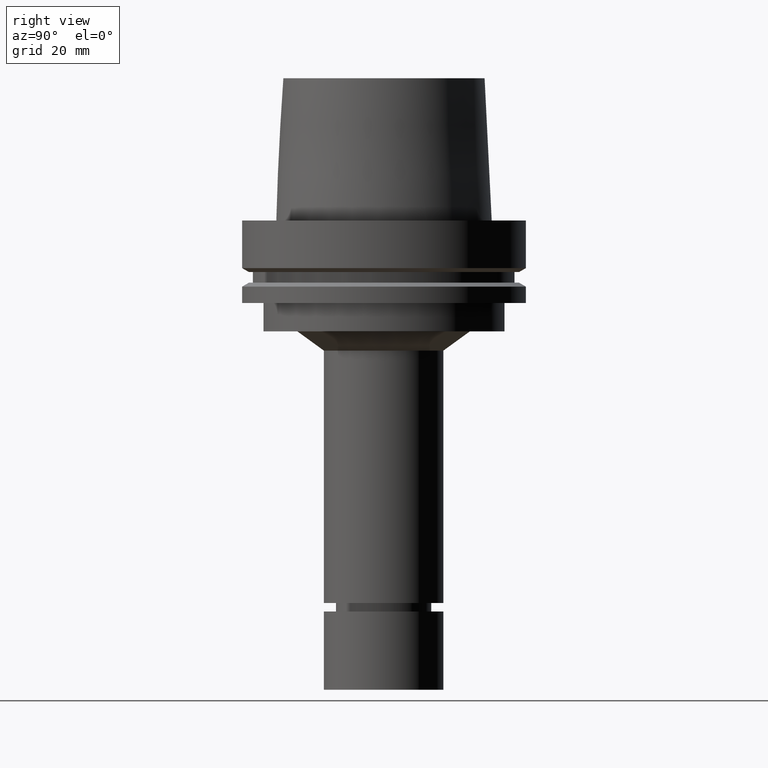
[diagram: clean part render]
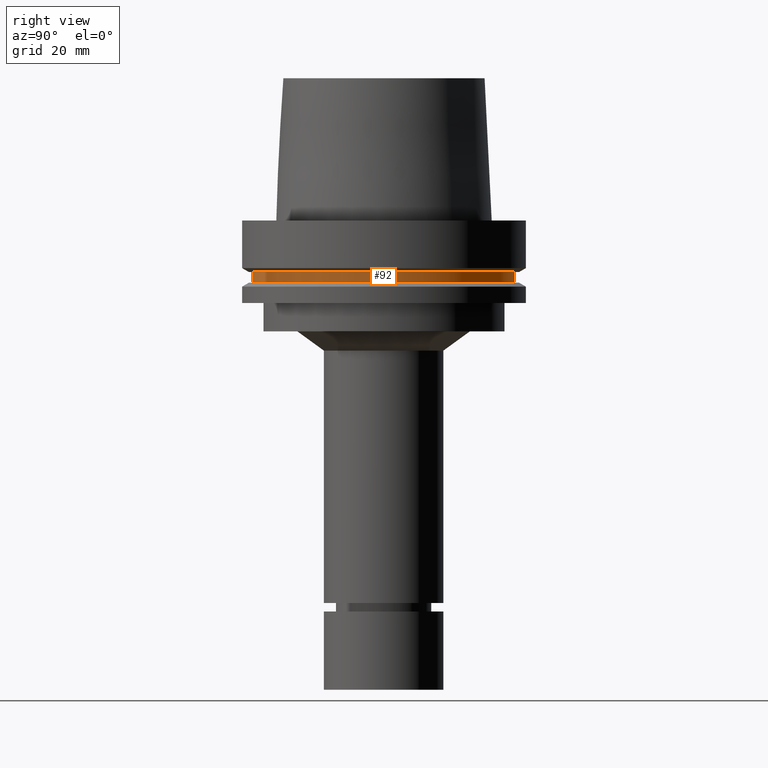
[diagram: same view with one face highlighted and labeled with its STEP entity id]
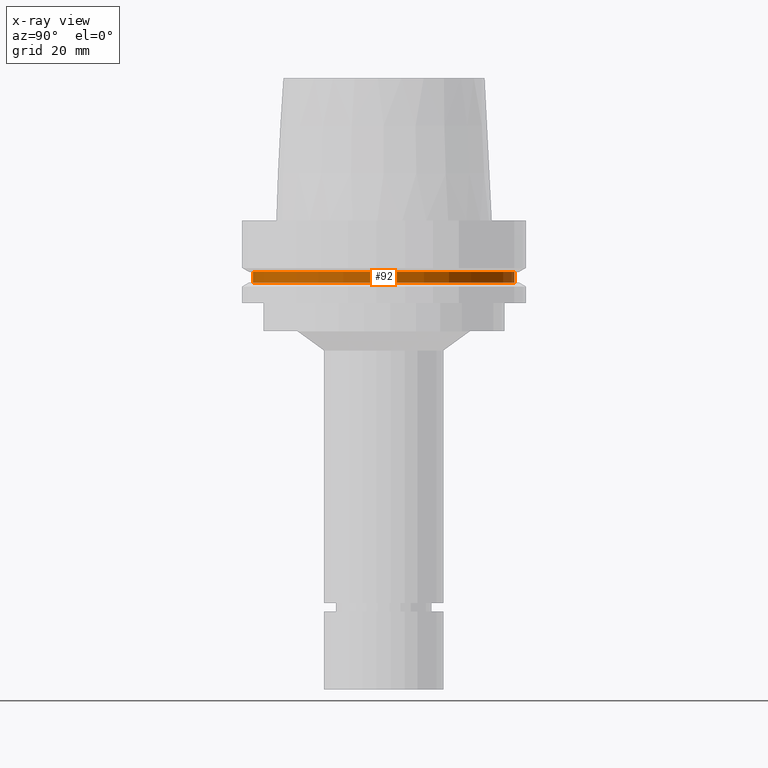
[diagram: x-ray of the same camera — body ghosted, the highlighted face saturated]
A machine part, right view. The second image highlights one B-rep face of the part: STEP entity #92.
The next image is the same camera in x-ray: the body ghosted, the highlighted face saturated — about 0% of this face is hidden behind the body in this view.
In plain terms, the highlighted cylindrical surface (bore or boss wall) has radius 46 mm, axis along (0, 0, -1).
Its self-contained STEP definition (entity closure, byte-faithful):
#84=EDGE_CURVE('Unnamed[1]',#227,#227,#228,.T.);
#92=ADVANCED_FACE('Unnamed[1]',(#239,#240),#241,.T.);
#159=EDGE_CURVE('Unnamed[1]',#343,#343,#344,.T.);
#227=VERTEX_POINT('',#428);
#228=CIRCLE('',#429,46.0);
#239=FACE_BOUND('',#443,.T.);
#240=FACE_BOUND('',#444,.T.);
#241=CYLINDRICAL_SURFACE('',#445,46.0);
#343=VERTEX_POINT('',#570);
#344=CIRCLE('',#571,46.0);
#428=CARTESIAN_POINT('',(1.10983616172729E-015,46.0,-18.125));
#429=AXIS2_PLACEMENT_3D('',#661,#662,#663);
#443=EDGE_LOOP('',(#674));
#444=EDGE_LOOP('',(#675));
#445=AXIS2_PLACEMENT_3D('',#676,#677,#678);
#570=CARTESIAN_POINT('',(1.33945743656742E-015,46.0,-21.875));
#571=AXIS2_PLACEMENT_3D('',#790,#791,#792);
#661=CARTESIAN_POINT('',(1.10983616172729E-015,2.21967232345458E-015,-18.125));
#662=DIRECTION('',(6.12323399573677E-017,1.22464679914735E-016,-1.0));
#663=DIRECTION('',(-1.23259516440783E-032,1.0,1.22464679914735E-016));
#674=ORIENTED_EDGE('',*,*,#159,.F.);
#675=ORIENTED_EDGE('',*,*,#84,.T.);
#676=CARTESIAN_POINT('',(1.22464679914735E-015,2.44929359829471E-015,-20.0));
#677=DIRECTION('',(6.12323399573677E-017,1.22464679914735E-016,-1.0));
#678=DIRECTION('',(-1.23259516440783E-032,1.0,1.22464679914735E-016));
#790=CARTESIAN_POINT('',(1.33945743656742E-015,2.67891487313483E-015,-21.875));
#791=DIRECTION('',(6.12323399573677E-017,1.22464679914735E-016,-1.0));
#792=DIRECTION('',(-1.23259516440783E-032,1.0,1.22464679914735E-016));